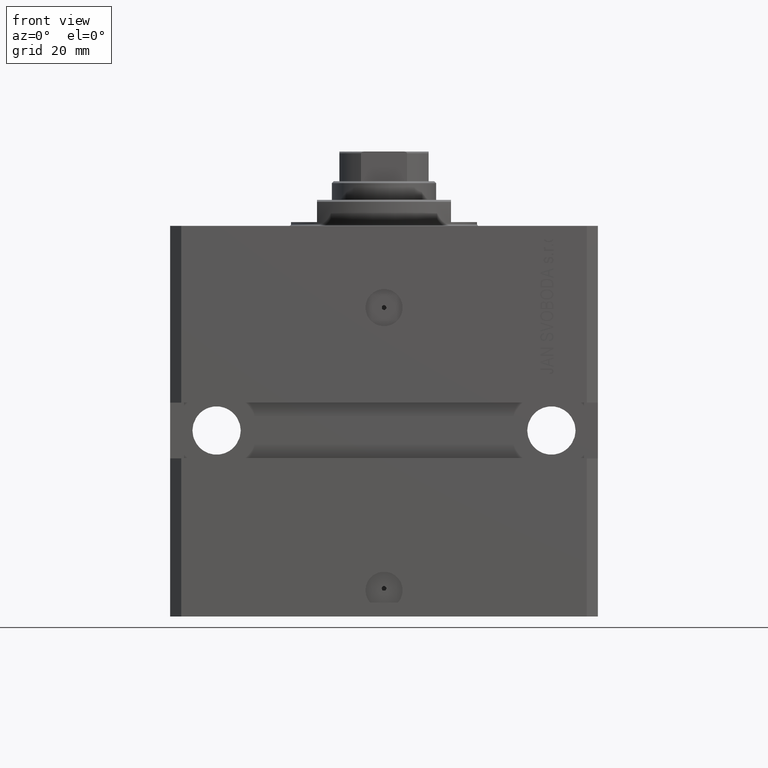
[diagram: clean part render]
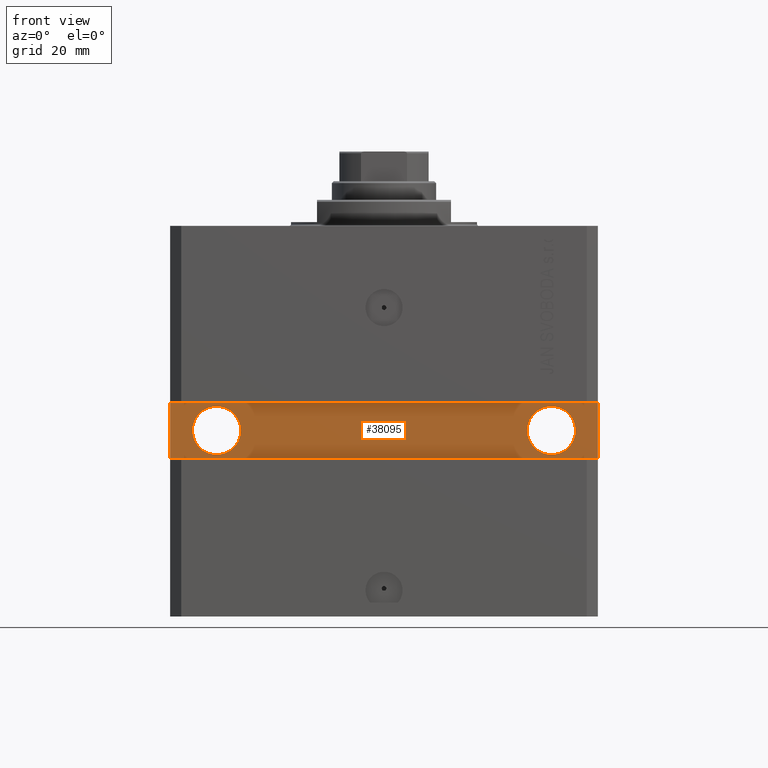
[diagram: same view with one face highlighted and labeled with its STEP entity id]
A machine part, front view. The second image highlights one B-rep face of the part: STEP entity #38095.
In plain terms, the highlighted planar face has unit normal (0, -1, 0).
Its self-contained STEP definition (entity closure, byte-faithful):
#449 = LINE ( 'NONE', #30465, #1480 ) ;
#469 = CARTESIAN_POINT ( 'NONE',  ( -57.50000000000000711, -40.00000000000000000, -47.50000000000000711 ) ) ;
#1480 = VECTOR ( 'NONE', #45494, 1000.000000000000000 ) ;
#1766 = EDGE_CURVE ( 'NONE', #4420, #42113, #14988, .T. ) ;
#2073 = CARTESIAN_POINT ( 'NONE',  ( -44.99999999999998579, -40.00000000000000000, -55.00000000000001421 ) ) ;
#3176 = AXIS2_PLACEMENT_3D ( 'NONE', #6744, #18066, #21756 ) ;
#4420 = VERTEX_POINT ( 'NONE', #14688 ) ;
#5362 = CARTESIAN_POINT ( 'NONE',  ( -51.49999999999998579, -40.00000000000000000, -55.00000000000001421 ) ) ;
#5424 = PLANE ( 'NONE',  #42648 ) ;
#6744 = CARTESIAN_POINT ( 'NONE',  ( -44.99999999999998579, -40.00000000000000000, -55.00000000000001421 ) ) ;
#8035 = VECTOR ( 'NONE', #15476, 1000.000000000000000 ) ;
#8952 = VERTEX_POINT ( 'NONE', #5362 ) ;
#9601 = CARTESIAN_POINT ( 'NONE',  ( -57.50000000000000711, -40.00000000000000000, -62.50000000000000000 ) ) ;
#9800 = DIRECTION ( 'NONE',  ( 7.680174481697266334E-17, -1.000000000000000000, 1.232595164407830946E-32 ) ) ;
#12385 = CARTESIAN_POINT ( 'NONE',  ( 57.50000000000000711, -39.99999999999998579, -62.50000000000000000 ) ) ;
#12422 = CARTESIAN_POINT ( 'NONE',  ( 51.50000000000001421, -39.99999999999999289, -55.00000000000000000 ) ) ;
#13052 = CARTESIAN_POINT ( 'NONE',  ( 4.842396851142260860E-15, -39.99999999999999289, 0.000000000000000000 ) ) ;
#13234 = AXIS2_PLACEMENT_3D ( 'NONE', #25292, #9800, #47941 ) ;
#13366 = DIRECTION ( 'NONE',  ( 1.000000000000000000, 0.000000000000000000, 0.000000000000000000 ) ) ;
#13634 = ORIENTED_EDGE ( 'NONE', *, *, #27528, .T. ) ;
#14013 = CIRCLE ( 'NONE', #13234, 6.499999999999999112 ) ;
#14688 = CARTESIAN_POINT ( 'NONE',  ( -57.50000000000000711, -40.00000000000000000, -47.50000000000000711 ) ) ;
#14988 = LINE ( 'NONE', #469, #8035 ) ;
#15476 = DIRECTION ( 'NONE',  ( 0.000000000000000000, 0.000000000000000000, -1.000000000000000000 ) ) ;
#15846 = VERTEX_POINT ( 'NONE', #34632 ) ;
#16488 = CIRCLE ( 'NONE', #20425, 6.499999999999999112 ) ;
#17552 = EDGE_CURVE ( 'NONE', #42113, #46081, #28544, .T. ) ;
#17910 = ORIENTED_EDGE ( 'NONE', *, *, #31364, .F. ) ;
#18066 = DIRECTION ( 'NONE',  ( 1.101411730780568590E-16, -1.000000000000000000, 0.000000000000000000 ) ) ;
#19989 = EDGE_CURVE ( 'NONE', #22973, #34729, #14013, .T. ) ;
#20197 = FACE_OUTER_BOUND ( 'NONE', #22206, .T. ) ;
#20425 = AXIS2_PLACEMENT_3D ( 'NONE', #47105, #31340, #13366 ) ;
#21756 = DIRECTION ( 'NONE',  ( 1.000000000000000000, 0.000000000000000000, 0.000000000000000000 ) ) ;
#22206 = EDGE_LOOP ( 'NONE', ( #33056, #13634, #38482, #30254 ) ) ;
#22973 = VERTEX_POINT ( 'NONE', #30258 ) ;
#23384 = ORIENTED_EDGE ( 'NONE', *, *, #19989, .F. ) ;
#24380 = DIRECTION ( 'NONE',  ( 1.206764157201257045E-16, -1.000000000000000000, 0.000000000000000000 ) ) ;
#24404 = CIRCLE ( 'NONE', #3176, 6.499999999999999112 ) ;
#24622 = FACE_BOUND ( 'NONE', #42594, .T. ) ;
#24624 = DIRECTION ( 'NONE',  ( 1.000000000000000000, 1.206764157201257045E-16, 0.000000000000000000 ) ) ;
#25292 = CARTESIAN_POINT ( 'NONE',  ( 45.00000000000001421, -39.99999999999999289, -55.00000000000000000 ) ) ;
#27400 = EDGE_LOOP ( 'NONE', ( #17910, #23384 ) ) ;
#27528 = EDGE_CURVE ( 'NONE', #46081, #32565, #38965, .T. ) ;
#27719 = CARTESIAN_POINT ( 'NONE',  ( 57.50000000000000711, -39.99999999999998579, -47.49999999999997868 ) ) ;
#28544 = LINE ( 'NONE', #39384, #38288 ) ;
#29645 = EDGE_CURVE ( 'NONE', #32565, #4420, #449, .T. ) ;
#30254 = ORIENTED_EDGE ( 'NONE', *, *, #1766, .T. ) ;
#30258 = CARTESIAN_POINT ( 'NONE',  ( 38.50000000000001421, -39.99999999999999289, -55.00000000000000000 ) ) ;
#30465 = CARTESIAN_POINT ( 'NONE',  ( 57.50000000000000711, -39.99999999999998579, -47.49999999999997868 ) ) ;
#31340 = DIRECTION ( 'NONE',  ( 7.680174481697266334E-17, -1.000000000000000000, 1.232595164407830946E-32 ) ) ;
#31364 = EDGE_CURVE ( 'NONE', #34729, #22973, #16488, .T. ) ;
#32565 = VERTEX_POINT ( 'NONE', #27719 ) ;
#32870 = EDGE_CURVE ( 'NONE', #15846, #8952, #39316, .T. ) ;
#32907 = EDGE_CURVE ( 'NONE', #8952, #15846, #24404, .T. ) ;
#33056 = ORIENTED_EDGE ( 'NONE', *, *, #17552, .T. ) ;
#33061 = DIRECTION ( 'NONE',  ( 1.000000000000000000, 0.000000000000000000, 0.000000000000000000 ) ) ;
#33963 = ORIENTED_EDGE ( 'NONE', *, *, #32907, .F. ) ;
#34632 = CARTESIAN_POINT ( 'NONE',  ( -38.49999999999998579, -40.00000000000000000, -55.00000000000001421 ) ) ;
#34729 = VERTEX_POINT ( 'NONE', #12422 ) ;
#36171 = DIRECTION ( 'NONE',  ( 1.000000000000000000, 1.206764157201257045E-16, 0.000000000000000000 ) ) ;
#36755 = DIRECTION ( 'NONE',  ( 1.101411730780568590E-16, -1.000000000000000000, 0.000000000000000000 ) ) ;
#38095 = ADVANCED_FACE ( 'NONE', ( #46788, #24622, #20197 ), #5424, .T. ) ;
#38288 = VECTOR ( 'NONE', #24624, 1000.000000000000000 ) ;
#38482 = ORIENTED_EDGE ( 'NONE', *, *, #29645, .T. ) ;
#38538 = AXIS2_PLACEMENT_3D ( 'NONE', #2073, #36755, #33061 ) ;
#38965 = LINE ( 'NONE', #12385, #46379 ) ;
#39316 = CIRCLE ( 'NONE', #38538, 6.499999999999999112 ) ;
#39384 = CARTESIAN_POINT ( 'NONE',  ( -57.50000000000000711, -40.00000000000000000, -62.50000000000000000 ) ) ;
#40380 = ORIENTED_EDGE ( 'NONE', *, *, #32870, .F. ) ;
#42113 = VERTEX_POINT ( 'NONE', #9601 ) ;
#42594 = EDGE_LOOP ( 'NONE', ( #40380, #33963 ) ) ;
#42648 = AXIS2_PLACEMENT_3D ( 'NONE', #13052, #24380, #36171 ) ;
#42895 = DIRECTION ( 'NONE',  ( 0.000000000000000000, 0.000000000000000000, 1.000000000000000000 ) ) ;
#45494 = DIRECTION ( 'NONE',  ( -1.000000000000000000, -1.206764157201257045E-16, -2.413528314402514090E-16 ) ) ;
#45671 = CARTESIAN_POINT ( 'NONE',  ( 57.50000000000000711, -39.99999999999998579, -62.50000000000000000 ) ) ;
#46081 = VERTEX_POINT ( 'NONE', #45671 ) ;
#46379 = VECTOR ( 'NONE', #42895, 1000.000000000000000 ) ;
#46788 = FACE_BOUND ( 'NONE', #27400, .T. ) ;
#47105 = CARTESIAN_POINT ( 'NONE',  ( 45.00000000000001421, -39.99999999999999289, -55.00000000000000000 ) ) ;
#47941 = DIRECTION ( 'NONE',  ( 1.000000000000000000, 0.000000000000000000, 0.000000000000000000 ) ) ;